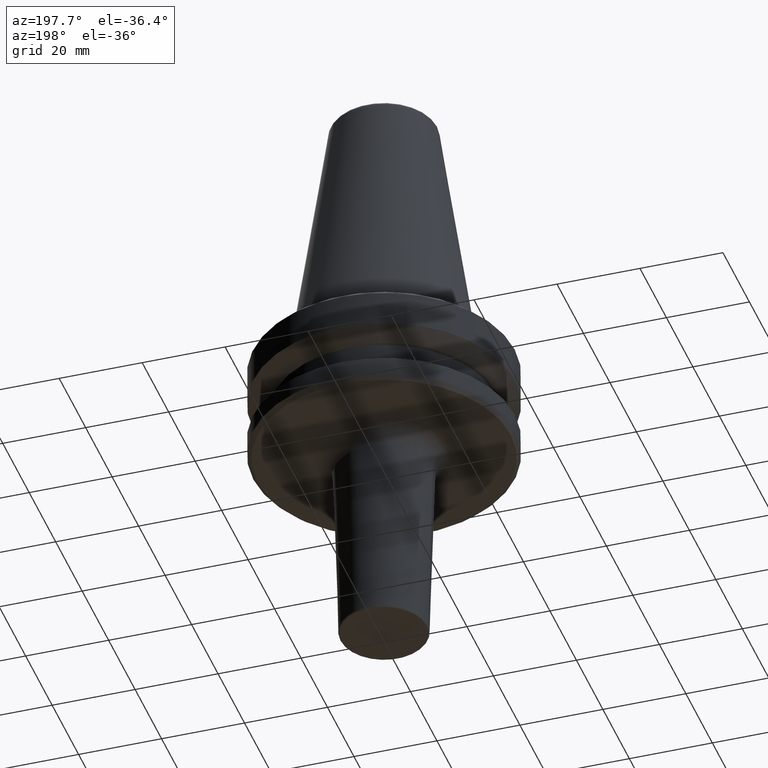
[diagram: clean part render]
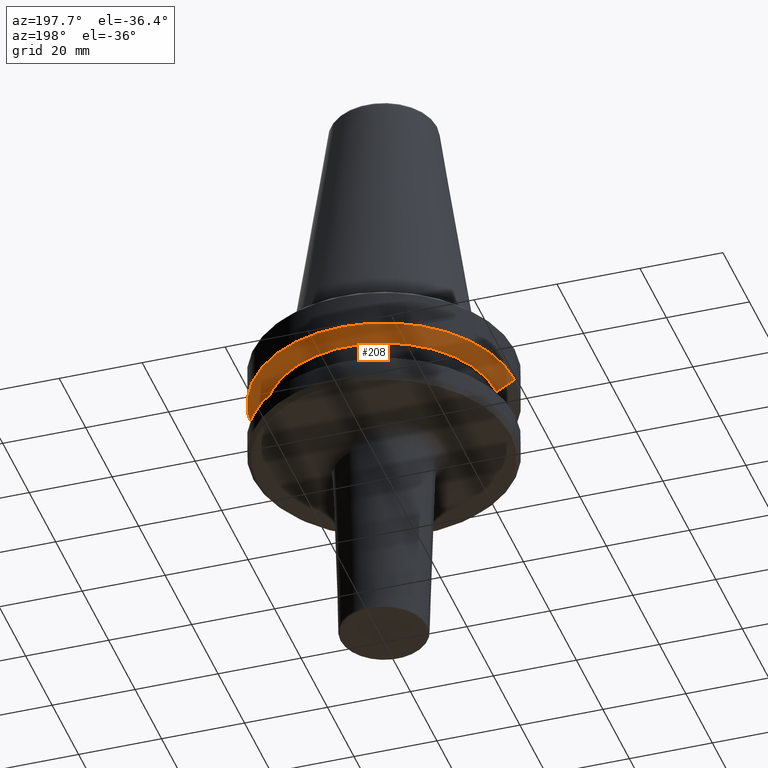
[diagram: same view with one face highlighted and labeled with its STEP entity id]
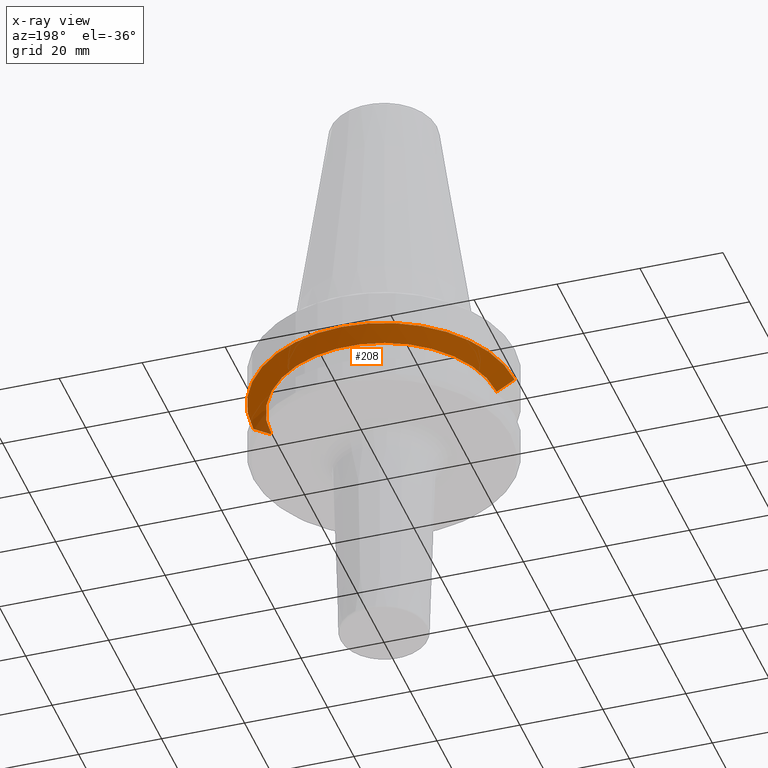
[diagram: x-ray of the same camera — body ghosted, the highlighted face saturated]
A machine part, auxiliary view. The second image highlights one B-rep face of the part: STEP entity #208.
The next image is the same camera in x-ray: the body ghosted, the highlighted face saturated — about 4% of this face is hidden behind the body in this view.
In plain terms, the highlighted conical surface has half-angle 60 deg.
Its self-contained STEP definition (entity closure, byte-faithful):
#40 = DIRECTION ( 'NONE',  ( -0.0000000000000000000, -0.0000000000000000000, 1.000000000000000000 ) ) ;
#61 = ORIENTED_EDGE ( 'NONE', *, *, #637, .T. ) ;
#62 = DIRECTION ( 'NONE',  ( 1.000000000000000000, 0.0000000000000000000, 0.0000000000000000000 ) ) ;
#68 = ORIENTED_EDGE ( 'NONE', *, *, #616, .F. ) ;
#83 = VERTEX_POINT ( 'NONE', #286 ) ;
#118 = CIRCLE ( 'NONE', #779, 31.50000000000008500 ) ;
#141 = VERTEX_POINT ( 'NONE', #857 ) ;
#155 = CARTESIAN_POINT ( 'NONE',  ( 0.0000000000000000000, 0.0000000000000000000, -79.50000000000012800 ) ) ;
#162 = VERTEX_POINT ( 'NONE', #340 ) ;
#200 = VECTOR ( 'NONE', #345, 1000.000000000000100 ) ;
#208 = ADVANCED_FACE ( 'NONE', ( #1012 ), #991, .T. ) ;
#286 = CARTESIAN_POINT ( 'NONE',  ( 31.50000000000008500, 0.0000000000000000000, -76.99985799368391800 ) ) ;
#321 = CARTESIAN_POINT ( 'NONE',  ( -31.50000000000008500, 3.857637417314172900E-015, -76.99985799368391800 ) ) ;
#340 = CARTESIAN_POINT ( 'NONE',  ( -27.16962701892322600, 3.592478546794674900E-015, -79.50000000000012800 ) ) ;
#345 = DIRECTION ( 'NONE',  ( 0.8660254037844383700, 0.0000000000000000000, 0.5000000000000003300 ) ) ;
#348 = CARTESIAN_POINT ( 'NONE',  ( 27.16962701892322600, 0.0000000000000000000, -79.50000000000012800 ) ) ;
#370 = CARTESIAN_POINT ( 'NONE',  ( 0.0000000000000000000, 0.0000000000000000000, -76.99985799368391800 ) ) ;
#375 = DIRECTION ( 'NONE',  ( -0.0000000000000000000, -0.0000000000000000000, 1.000000000000000000 ) ) ;
#391 = LINE ( 'NONE', #321, #1009 ) ;
#436 = ORIENTED_EDGE ( 'NONE', *, *, #716, .F. ) ;
#446 = CIRCLE ( 'NONE', #787, 27.16962701892322600 ) ;
#450 = VERTEX_POINT ( 'NONE', #348 ) ;
#598 = EDGE_LOOP ( 'NONE', ( #705, #61, #436, #68 ) ) ;
#616 = EDGE_CURVE ( 'NONE', #450, #83, #1032, .T. ) ;
#637 = EDGE_CURVE ( 'NONE', #162, #141, #391, .T. ) ;
#674 = DIRECTION ( 'NONE',  ( -0.8660254037844383700, 1.060575238724906500E-016, 0.5000000000000003300 ) ) ;
#705 = ORIENTED_EDGE ( 'NONE', *, *, #881, .T. ) ;
#716 = EDGE_CURVE ( 'NONE', #83, #141, #118, .T. ) ;
#766 = DIRECTION ( 'NONE',  ( 1.000000000000000000, 0.0000000000000000000, 0.0000000000000000000 ) ) ;
#779 = AXIS2_PLACEMENT_3D ( 'NONE', #979, #40, #844 ) ;
#787 = AXIS2_PLACEMENT_3D ( 'NONE', #155, #1045, #62 ) ;
#844 = DIRECTION ( 'NONE',  ( 1.000000000000000000, 0.0000000000000000000, 0.0000000000000000000 ) ) ;
#857 = CARTESIAN_POINT ( 'NONE',  ( -31.50000000000008500, 3.857637417314172900E-015, -76.99985799368391800 ) ) ;
#881 = EDGE_CURVE ( 'NONE', #450, #162, #446, .T. ) ;
#917 = CARTESIAN_POINT ( 'NONE',  ( 31.50000000000008500, 0.0000000000000000000, -76.99985799368391800 ) ) ;
#925 = AXIS2_PLACEMENT_3D ( 'NONE', #370, #375, #766 ) ;
#979 = CARTESIAN_POINT ( 'NONE',  ( 0.0000000000000000000, 0.0000000000000000000, -76.99985799368391800 ) ) ;
#991 = CONICAL_SURFACE ( 'NONE', #925, 31.50000000000008500, 1.047197551196597400 ) ;
#1009 = VECTOR ( 'NONE', #674, 1000.000000000000100 ) ;
#1012 = FACE_OUTER_BOUND ( 'NONE', #598, .T. ) ;
#1032 = LINE ( 'NONE', #917, #200 ) ;
#1045 = DIRECTION ( 'NONE',  ( -0.0000000000000000000, -0.0000000000000000000, 1.000000000000000000 ) ) ;